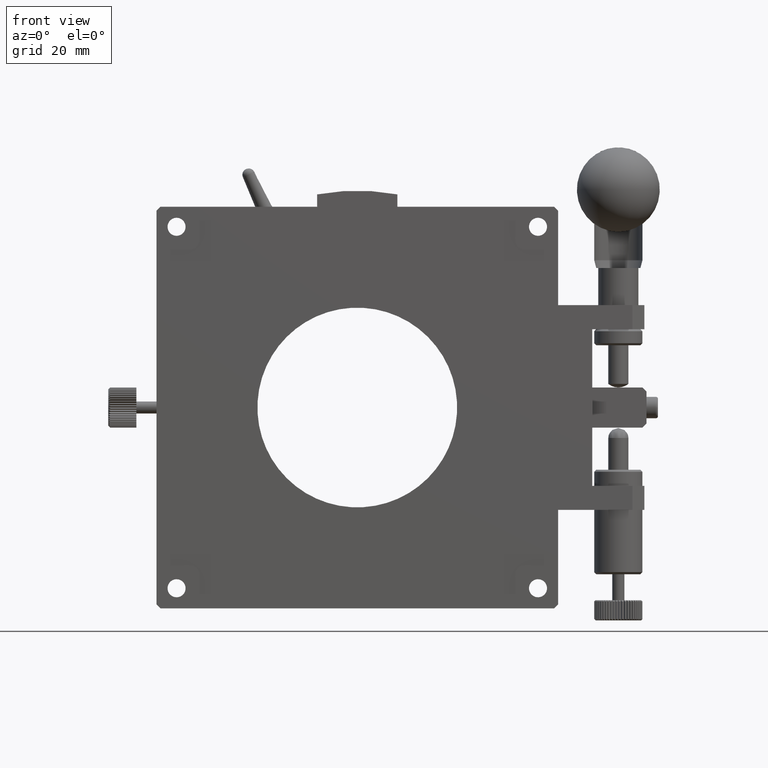
[diagram: clean part render]
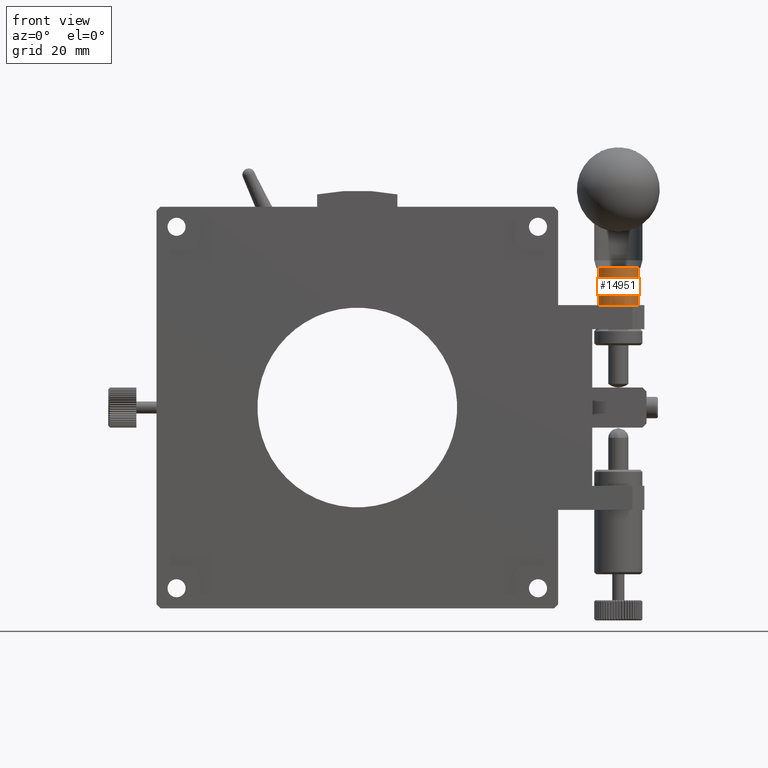
[diagram: same view with one face highlighted and labeled with its STEP entity id]
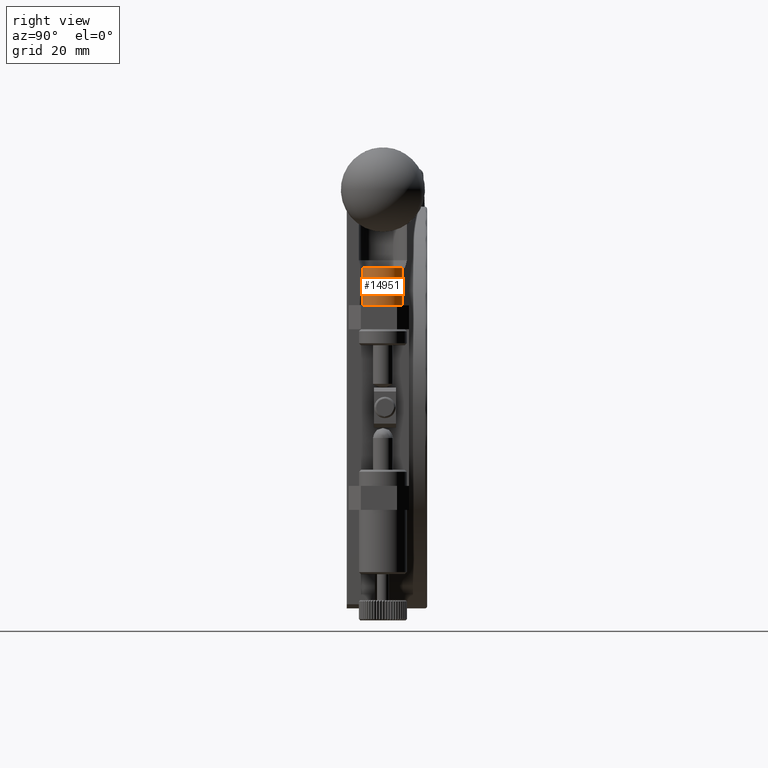
[diagram: same view with one face highlighted and labeled with its STEP entity id]
A machine part, front view. The second image highlights one B-rep face of the part: STEP entity #14951.
A second angle (right view) of the same face is appended — the face is thin or edge-on in the first view.
In plain terms, the highlighted cylindrical surface (bore or boss wall) has radius 5 mm, axis along (0, 0, -1).
Its self-contained STEP definition (entity closure, byte-faithful):
#3334 = EDGE_CURVE ( 'NONE', #65619, #65619, #19990, .T. ) ;
#6619 = CARTESIAN_POINT ( 'NONE',  ( 65.00226274194389475, 9.000000000000001776, 4.999570194249829846 ) ) ;
#7591 = FACE_OUTER_BOUND ( 'NONE', #43537, .T. ) ;
#7764 = EDGE_CURVE ( 'NONE', #13389, #13389, #7778, .T. ) ;
#7778 = CIRCLE ( 'NONE', #38955, 4.999999999999997335 ) ;
#13389 = VERTEX_POINT ( 'NONE', #22666 ) ;
#14951 = ADVANCED_FACE ( 'NONE', ( #44152, #7591 ), #50989, .T. ) ;
#17379 = ORIENTED_EDGE ( 'NONE', *, *, #7764, .F. ) ;
#17429 = DIRECTION ( 'NONE',  ( 0.000000000000000000, 0.000000000000000000, -1.000000000000000000 ) ) ;
#19990 = CIRCLE ( 'NONE', #49606, 4.999999999999997335 ) ;
#21794 = DIRECTION ( 'NONE',  ( -1.000000000000000000, 0.000000000000000000, 0.000000000000000000 ) ) ;
#22666 = CARTESIAN_POINT ( 'NONE',  ( 60.00226274194390186, 9.000000000000001776, 25.50000000000000355 ) ) ;
#28048 = AXIS2_PLACEMENT_3D ( 'NONE', #6619, #52442, #37334 ) ;
#37334 = DIRECTION ( 'NONE',  ( -1.000000000000000000, 0.000000000000000000, 0.000000000000000000 ) ) ;
#38955 = AXIS2_PLACEMENT_3D ( 'NONE', #43740, #58860, #21794 ) ;
#43537 = EDGE_LOOP ( 'NONE', ( #17379 ) ) ;
#43740 = CARTESIAN_POINT ( 'NONE',  ( 65.00226274194389475, 9.000000000000001776, 25.50000000000000355 ) ) ;
#44152 = FACE_OUTER_BOUND ( 'NONE', #82751, .T. ) ;
#45751 = DIRECTION ( 'NONE',  ( -1.000000000000000000, 0.000000000000000000, 0.000000000000000000 ) ) ;
#49606 = AXIS2_PLACEMENT_3D ( 'NONE', #91580, #17429, #45751 ) ;
#50989 = CYLINDRICAL_SURFACE ( 'NONE', #28048, 4.999999999999997335 ) ;
#52442 = DIRECTION ( 'NONE',  ( 0.000000000000000000, 0.000000000000000000, -1.000000000000000000 ) ) ;
#58270 = CARTESIAN_POINT ( 'NONE',  ( 60.00226274194390186, 9.000000000000001776, 34.74957019424979876 ) ) ;
#58860 = DIRECTION ( 'NONE',  ( 0.000000000000000000, 0.000000000000000000, -1.000000000000000000 ) ) ;
#65619 = VERTEX_POINT ( 'NONE', #58270 ) ;
#67294 = ORIENTED_EDGE ( 'NONE', *, *, #3334, .T. ) ;
#82751 = EDGE_LOOP ( 'NONE', ( #67294 ) ) ;
#91580 = CARTESIAN_POINT ( 'NONE',  ( 65.00226274194389475, 9.000000000000001776, 34.74957019424979876 ) ) ;